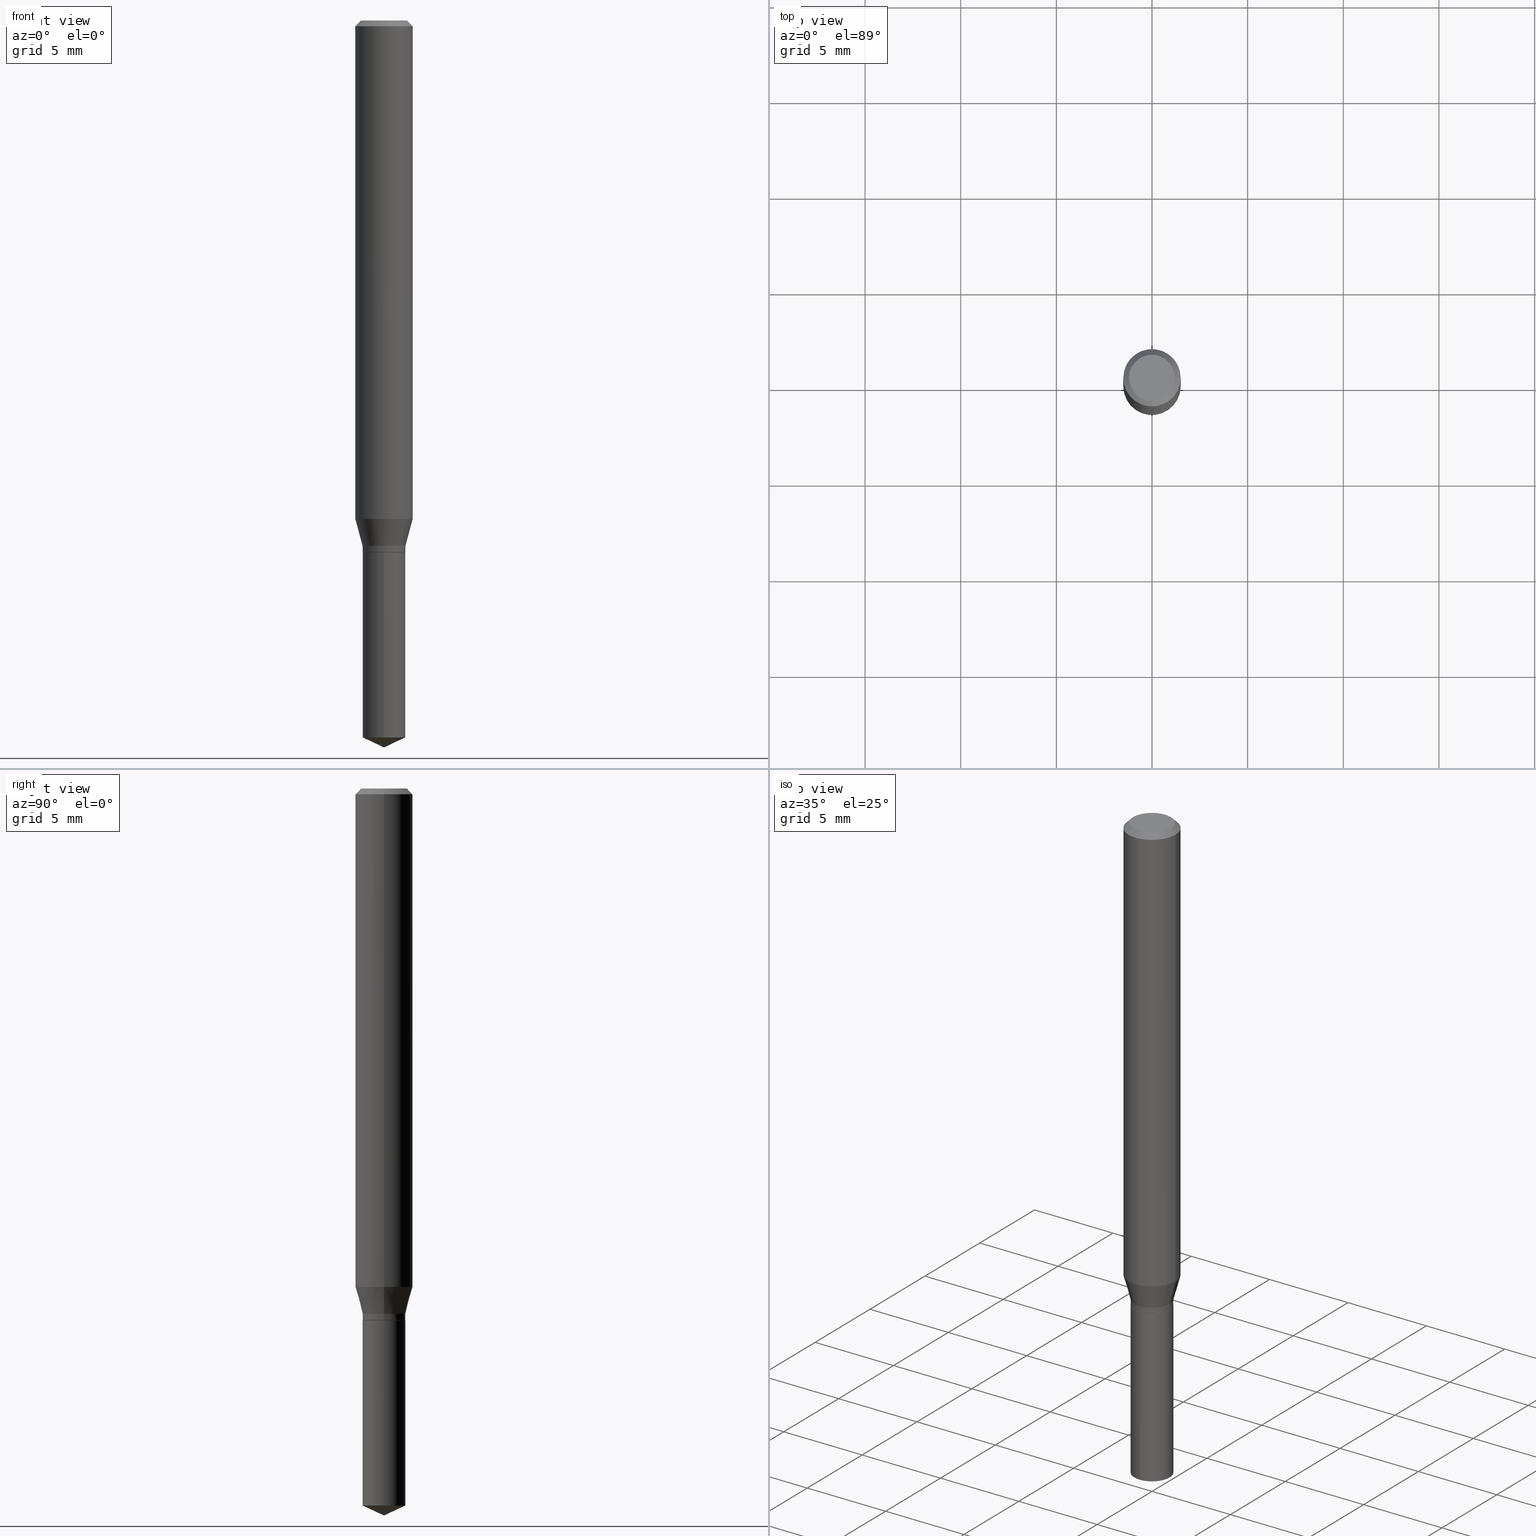
[diagram: canonical four-view strip — front | top / right | iso, engineering-drawing reading convention]
A machine part, canonical four-view strip (front | top / right | iso — engineering-drawing reading convention). The complete STEP part file that produces these views, byte-faithful:
ISO-10303-21;
HEADER;
FILE_DESCRIPTION (( 'STEP AP203' ),
    '1' );
FILE_NAME ('07629.STEP',
    '2024-04-24T00:02:10',
    ( '' ),
    ( '' ),
    'SwSTEP 2.0',
    'SolidWorks 2023',
    '' );
FILE_SCHEMA (( 'CONFIG_CONTROL_DESIGN' ));
ENDSEC;

DATA;
#1 = ORIENTED_EDGE ( 'NONE', *, *, #243, .T. ) ;
#2 = CARTESIAN_POINT ( 'NONE',  ( 0.05905000000000013016, -3.992878450842360459E-15, -1.025505840426844895 ) ) ;
#3 = VECTOR ( 'NONE', #465, 39.37007874015748143 ) ;
#4 = EDGE_LOOP ( 'NONE', ( #455, #344, #325, #201 ) ) ;
#5 = DIRECTION ( 'NONE',  ( -2.445458899330790108E-29, 3.491495526022433205E-15, 1.000000000000000000 ) ) ;
#6 = ORIENTED_EDGE ( 'NONE', *, *, #239, .T. ) ;
#7 = EDGE_CURVE ( 'NONE', #244, #100, #140, .T. ) ;
#8 = CARTESIAN_POINT ( 'NONE',  ( 8.265746106709734507E-48, -1.180129479067563789E-33, -3.380025165646692144E-19 ) ) ;
#9 = VERTEX_POINT ( 'NONE', #138 ) ;
#10 = CARTESIAN_POINT ( 'NONE',  ( 0.04410000000000000031, -4.083287425777057775E-15, -1.081299999999999928 ) ) ;
#11 = APPLICATION_CONTEXT ( 'configuration controlled 3d designs of mechanical parts and assemblies' ) ;
#12 = CARTESIAN_POINT ( 'NONE',  ( -0.05905000000000013016, -3.160959019258645651E-15, -1.025505840426844895 ) ) ;
#13 = CIRCLE ( 'NONE', #222, 0.04410000000000000031 ) ;
#14 = EDGE_CURVE ( 'NONE', #384, #30, #370, .T. ) ;
#15 = FACE_OUTER_BOUND ( 'NONE', #4, .T. ) ;
#16 = CARTESIAN_POINT ( 'NONE',  ( 2.676565608369631794E-29, -3.821426325363822773E-15, -1.094499999999999806 ) ) ;
#17 = APPROVAL_STATUS ( 'not_yet_approved' ) ;
#18 = COORDINATED_UNIVERSAL_TIME_OFFSET ( 5, 0, .BEHIND. ) ;
#19 = LOCAL_TIME ( 20, 2, 10.00000000000000000, #286 ) ;
#20 = DIRECTION ( 'NONE',  ( 0.7071067811865451302, -7.319954787623248157E-15, -0.7071067811865499042 ) ) ;
#21 = DIRECTION ( 'NONE',  ( 2.445468806185136597E-29, -3.491481338843145583E-15, -1.000000000000000000 ) ) ;
#22 = ORIENTED_EDGE ( 'NONE', *, *, #447, .T. ) ;
#23 = CC_DESIGN_PERSON_AND_ORGANIZATION_ASSIGNMENT ( #216, #101, ( #106 ) ) ;
#24 = AXIS2_PLACEMENT_3D ( 'NONE', #446, #167, #132 ) ;
#25 = AXIS2_PLACEMENT_3D ( 'NONE', #431, #155, #87 ) ;
#26 = CARTESIAN_POINT ( 'NONE',  ( -9.261924752013118283E-28, 1.322368428517963298E-13, 37.87397874015748300 ) ) ;
#27 = DIRECTION ( 'NONE',  ( 1.000000000000000000, -6.982962677686271444E-15, 0.000000000000000000 ) ) ;
#28 = ORIENTED_EDGE ( 'NONE', *, *, #447, .F. ) ;
#29 = FACE_OUTER_BOUND ( 'NONE', #377, .T. ) ;
#30 = VERTEX_POINT ( 'NONE', #125 ) ;
#31 = FACE_OUTER_BOUND ( 'NONE', #82, .T. ) ;
#32 = VECTOR ( 'NONE', #381, 39.37007874015748143 ) ;
#33 = CIRCLE ( 'NONE', #25, 0.04410000000000000031 ) ;
#34 = VERTEX_POINT ( 'NONE', #323 ) ;
#35 = CARTESIAN_POINT ( 'NONE',  ( 2.676565608369631794E-29, -3.821426325363822773E-15, -1.094499999999999806 ) ) ;
#36 = EDGE_LOOP ( 'NONE', ( #309, #373, #426 ) ) ;
#37 = DIRECTION ( 'NONE',  ( -6.982962677686267499E-15, -1.000000000000000000, 3.520397390770434543E-15 ) ) ;
#38 = EDGE_CURVE ( 'NONE', #311, #488, #434, .T. ) ;
#39 = ORIENTED_EDGE ( 'NONE', *, *, #14, .T. ) ;
#40 = CARTESIAN_POINT ( 'NONE',  ( -3.079486540859375509E-16, -0.04410000000000382364, -1.094499999999999806 ) ) ;
#41 = AXIS2_PLACEMENT_3D ( 'NONE', #174, #135, #289 ) ;
#42 = AXIS2_PLACEMENT_3D ( 'NONE', #112, #305, #262 ) ;
#43 = ORIENTED_EDGE ( 'NONE', *, *, #211, .T. ) ;
#44 = DIRECTION ( 'NONE',  ( -2.445458899330790108E-29, 3.491495526022433205E-15, 1.000000000000000000 ) ) ;
#45 = ORIENTED_EDGE ( 'NONE', *, *, #211, .F. ) ;
#46 = CARTESIAN_POINT ( 'NONE',  ( 2.676565608369631794E-29, -3.821426325363822773E-15, -1.094499999999999806 ) ) ;
#47 = CARTESIAN_POINT ( 'NONE',  ( 2.676565608369631794E-29, -3.821426325363822773E-15, -1.094499999999999806 ) ) ;
#48 = CARTESIAN_POINT ( 'NONE',  ( 2.644285420127988674E-29, -3.775338771691093501E-15, -1.081299999999999928 ) ) ;
#49 = CLOSED_SHELL ( 'NONE', ( #68, #185, #363, #332, #149 ) ) ;
#50 = CARTESIAN_POINT ( 'NONE',  ( 0.05905000000000006771, -4.123439461173745257E-16, 2.879382386107503723E-30 ) ) ;
#51 = CIRCLE ( 'NONE', #146, 0.05905000000000013016 ) ;
#52 = DIRECTION ( 'NONE',  ( -2.445468806185136597E-29, 3.491481338843145583E-15, 1.000000000000000000 ) ) ;
#53 = DATE_TIME_ROLE ( 'creation_date' ) ;
#54 = AXIS2_PLACEMENT_3D ( 'NONE', #246, #425, #79 ) ;
#55 = LINE ( 'NONE', #401, #371 ) ;
#56 = VERTEX_POINT ( 'NONE', #475 ) ;
#57 = PERSON_AND_ORGANIZATION_ROLE ( 'classification_officer' ) ;
#58 = CARTESIAN_POINT ( 'NONE',  ( 2.644285420127988674E-29, -3.775338771691093501E-15, -1.081299999999999928 ) ) ;
#59 = EDGE_LOOP ( 'NONE', ( #189, #113, #481 ) ) ;
#60 = DIRECTION ( 'NONE',  ( -2.445468806185136597E-29, 3.491481338843145583E-15, 1.000000000000000000 ) ) ;
#61 = EDGE_CURVE ( 'NONE', #231, #406, #393, .T. ) ;
#62 = DATE_AND_TIME ( #327, #166 ) ;
#63 = VECTOR ( 'NONE', #490, 39.37007874015748143 ) ;
#64 = DIRECTION ( 'NONE',  ( -2.445468806185136597E-29, 3.491481338843145583E-15, 1.000000000000000000 ) ) ;
#65 = ORIENTED_EDGE ( 'NONE', *, *, #233, .F. ) ;
#66 = LINE ( 'NONE', #67, #330 ) ;
#67 = CARTESIAN_POINT ( 'NONE',  ( -0.04410000000000000031, -3.461989425220889120E-15, -1.081299999999999928 ) ) ;
#68 = ADVANCED_FACE ( 'NONE', ( #203 ), #352, .T. ) ;
#69 = EDGE_LOOP ( 'NONE', ( #424, #480, #115, #479 ) ) ;
#70 = COORDINATED_UNIVERSAL_TIME_OFFSET ( 5, 0, .BEHIND. ) ;
#71 = AXIS2_PLACEMENT_3D ( 'NONE', #374, #64, #453 ) ;
#72 = CARTESIAN_POINT ( 'NONE',  ( 2.675342873966538993E-29, -3.819680584694400481E-15, -1.093999999999999861 ) ) ;
#73 = CIRCLE ( 'NONE', #410, 0.04724000000000000421 ) ;
#74 = ORIENTED_EDGE ( 'NONE', *, *, #123, .F. ) ;
#75 = LINE ( 'NONE', #232, #32 ) ;
#76 = VERTEX_POINT ( 'NONE', #12 ) ;
#77 = FACE_OUTER_BOUND ( 'NONE', #69, .T. ) ;
#78 = ORIENTED_EDGE ( 'NONE', *, *, #302, .T. ) ;
#79 = DIRECTION ( 'NONE',  ( -1.000000000000000000, 6.982962677686266711E-15, 0.000000000000000000 ) ) ;
#80 = AXIS2_PLACEMENT_3D ( 'NONE', #470, #356, #86 ) ;
#81 = AXIS2_PLACEMENT_3D ( 'NONE', #108, #153, #27 ) ;
#82 = EDGE_LOOP ( 'NONE', ( #154, #326, #139, #199 ) ) ;
#83 = APPROVAL ( #474, 'UNSPECIFIED' ) ;
#84 = DIMENSIONAL_EXPONENTS ( 1.000000000000000000, 0.000000000000000000, 0.000000000000000000, 0.000000000000000000, 0.000000000000000000, 0.000000000000000000, 0.000000000000000000 ) ;
#85 = DIRECTION ( 'NONE',  ( -6.982962677686265922E-15, -1.000000000000000000, 3.097333326149958410E-15 ) ) ;
#86 = DIRECTION ( 'NONE',  ( -6.982962677686265922E-15, -1.000000000000000000, 6.194666652299916821E-15 ) ) ;
#87 = DIRECTION ( 'NONE',  ( 1.000000000000000000, -6.982962677686271444E-15, 0.000000000000000000 ) ) ;
#88 = DIRECTION ( 'NONE',  ( -2.445458899330790108E-29, 3.491495526022433205E-15, 1.000000000000000000 ) ) ;
#89 = LINE ( 'NONE', #279, #136 ) ;
#90 = PERSON_AND_ORGANIZATION ( #388, #385 ) ;
#91 = ADVANCED_BREP_SHAPE_REPRESENTATION ( '07629', ( #350, #430, #170 ), #104 ) ;
#92 =( LENGTH_UNIT ( ) NAMED_UNIT ( * ) SI_UNIT ( $, .METRE. ) );
#93 = CARTESIAN_POINT ( 'NONE',  ( -0.04359999999999999987, -3.511629692572418896E-15, -1.094499999999999806 ) ) ;
#94 = EDGE_CURVE ( 'NONE', #406, #34, #183, .T. ) ;
#95 = AXIS2_PLACEMENT_3D ( 'NONE', #258, #21, #177 ) ;
#96 = APPROVAL ( #304, 'UNSPECIFIED' ) ;
#97 = CIRCLE ( 'NONE', #121, 0.04724000000000000421 ) ;
#98 = DATE_AND_TIME ( #171, #19 ) ;
#99 = CARTESIAN_POINT ( 'NONE',  ( 2.888098660104665518E-31, -4.123439461173782112E-17, -0.01181000000000007738 ) ) ;
#100 = VERTEX_POINT ( 'NONE', #440 ) ;
#101 = PERSON_AND_ORGANIZATION_ROLE ( 'design_owner' ) ;
#102 = ORIENTED_EDGE ( 'NONE', *, *, #296, .F. ) ;
#103 = PLANE ( 'NONE',  #477 ) ;
#104 =( GEOMETRIC_REPRESENTATION_CONTEXT ( 3 ) GLOBAL_UNCERTAINTY_ASSIGNED_CONTEXT ( ( #143 ) ) GLOBAL_UNIT_ASSIGNED_CONTEXT ( ( #362, #131, #293 ) ) REPRESENTATION_CONTEXT ( 'NONE', 'WORKASPACE' ) );
#105 = CARTESIAN_POINT ( 'NONE',  ( 4.132873053354867254E-48, -5.900647395337818946E-34, -1.690012582823346072E-19 ) ) ;
#106 = PRODUCT ( '07629', '07629', '', ( #445 ) ) ;
#107 = PERSON_AND_ORGANIZATION ( #388, #385 ) ;
#108 = CARTESIAN_POINT ( 'NONE',  ( 2.644285420127988674E-29, -3.775338771691093501E-15, -1.081299999999999928 ) ) ;
#109 = EDGE_LOOP ( 'NONE', ( #191, #419, #234, #342 ) ) ;
#110 = DIRECTION ( 'NONE',  ( -2.445468806185136597E-29, 3.491481338843145583E-15, 1.000000000000000000 ) ) ;
#111 = ORIENTED_EDGE ( 'NONE', *, *, #38, .T. ) ;
#112 = CARTESIAN_POINT ( 'NONE',  ( 0.000000000000000000, 0.000000000000000000, 0.000000000000000000 ) ) ;
#113 = ORIENTED_EDGE ( 'NONE', *, *, #439, .T. ) ;
#114 = CARTESIAN_POINT ( 'NONE',  ( 0.04359999999999999987, -4.125883498110944040E-15, -1.094499999999999806 ) ) ;
#115 = ORIENTED_EDGE ( 'NONE', *, *, #94, .T. ) ;
#116 = CARTESIAN_POINT ( 'NONE',  ( 2.507842543324521541E-29, -3.580534504724985539E-15, -1.025505840426844895 ) ) ;
#117 = CC_DESIGN_PERSON_AND_ORGANIZATION_ASSIGNMENT ( #251, #57, ( #223 ) ) ;
#118 = ORIENTED_EDGE ( 'NONE', *, *, #415, .T. ) ;
#119 = LINE ( 'NONE', #392, #197 ) ;
#120 = AXIS2_PLACEMENT_3D ( 'NONE', #58, #367, #220 ) ;
#121 = AXIS2_PLACEMENT_3D ( 'NONE', #8, #396, #163 ) ;
#122 = ORIENTED_EDGE ( 'NONE', *, *, #239, .F. ) ;
#123 = EDGE_CURVE ( 'NONE', #384, #244, #278, .T. ) ;
#124 = FACE_OUTER_BOUND ( 'NONE', #275, .T. ) ;
#125 = CARTESIAN_POINT ( 'NONE',  ( 0.04359999999999999987, -4.125883498110944040E-15, -1.094499999999999806 ) ) ;
#126 = DIRECTION ( 'NONE',  ( -2.445468806185136597E-29, 3.491481338843145583E-15, 1.000000000000000000 ) ) ;
#127 = APPROVAL ( #17, 'UNSPECIFIED' ) ;
#128 = DIRECTION ( 'NONE',  ( 0.000000000000000000, 0.000000000000000000, 1.000000000000000000 ) ) ;
#129 = CONICAL_SURFACE ( 'NONE', #179, 0.04359999999999999987, 0.7853981633974141952 ) ;
#130 = COORDINATED_UNIVERSAL_TIME_OFFSET ( 5, 0, .BEHIND. ) ;
#131 =( NAMED_UNIT ( * ) PLANE_ANGLE_UNIT ( ) SI_UNIT ( $, .RADIAN. ) );
#132 = DIRECTION ( 'NONE',  ( 1.000000000000000000, -6.982962677686266711E-15, 0.000000000000000000 ) ) ;
#133 = CC_DESIGN_PERSON_AND_ORGANIZATION_ASSIGNMENT ( #250, #398, ( #416 ) ) ;
#134 = APPLICATION_PROTOCOL_DEFINITION ( 'international standard', 'config_control_design', 1994, #198 ) ;
#135 = DIRECTION ( 'NONE',  ( -2.445458899330790108E-29, 3.491495526022433205E-15, 1.000000000000000000 ) ) ;
#136 = VECTOR ( 'NONE', #355, 39.37007874015748143 ) ;
#137 = PERSON_AND_ORGANIZATION ( #388, #385 ) ;
#138 = CARTESIAN_POINT ( 'NONE',  ( 0.04724000000000000421, -3.852183633974369838E-16, -3.380025165621689721E-19 ) ) ;
#139 = ORIENTED_EDGE ( 'NONE', *, *, #94, .F. ) ;
#140 = LINE ( 'NONE', #333, #178 ) ;
#141 = EDGE_CURVE ( 'NONE', #488, #311, #145, .T. ) ;
#142 = DATE_TIME_ROLE ( 'classification_date' ) ;
#143 = UNCERTAINTY_MEASURE_WITH_UNIT (LENGTH_MEASURE( 1.000000000000000082E-05 ), #362, 'distance_accuracy_value', 'NONE');
#144 = DIRECTION ( 'NONE',  ( -2.445468806185136597E-29, 3.491481338843145583E-15, 1.000000000000000000 ) ) ;
#145 = CIRCLE ( 'NONE', #376, 0.04410000000000000031 ) ;
#146 = AXIS2_PLACEMENT_3D ( 'NONE', #116, #242, #383 ) ;
#147 = DIRECTION ( 'NONE',  ( 1.000000000000000000, -6.982962677686265922E-15, 4.876176775795935793E-29 ) ) ;
#148 = ORIENTED_EDGE ( 'NONE', *, *, #288, .T. ) ;
#149 = ADVANCED_FACE ( 'NONE', ( #247 ), #214, .F. ) ;
#150 = CYLINDRICAL_SURFACE ( 'NONE', #395, 0.04410000000000000031 ) ;
#151 = ADVANCED_FACE ( 'NONE', ( #365 ), #452, .T. ) ;
#152 = ORIENTED_EDGE ( 'NONE', *, *, #315, .F. ) ;
#153 = DIRECTION ( 'NONE',  ( -2.445468806185136597E-29, 3.491481338843145583E-15, 1.000000000000000000 ) ) ;
#154 = ORIENTED_EDGE ( 'NONE', *, *, #321, .T. ) ;
#155 = DIRECTION ( 'NONE',  ( -2.445468806185136597E-29, 3.491481338843145583E-15, 1.000000000000000000 ) ) ;
#156 = PRODUCT_DEFINITION_FORMATION_WITH_SPECIFIED_SOURCE ( 'ANY', '', #106, .NOT_KNOWN. ) ;
#157 = ORIENTED_EDGE ( 'NONE', *, *, #204, .T. ) ;
#158 = DIRECTION ( 'NONE',  ( -6.982962677686267499E-15, -1.000000000000000000, 3.520397390770434543E-15 ) ) ;
#159 = VERTEX_POINT ( 'NONE', #444 ) ;
#160 = DIRECTION ( 'NONE',  ( 1.000000000000000000, -6.982962677686271444E-15, 0.000000000000000000 ) ) ;
#161 = ORIENTED_EDGE ( 'NONE', *, *, #357, .T. ) ;
#162 = EDGE_CURVE ( 'NONE', #34, #406, #329, .T. ) ;
#163 = DIRECTION ( 'NONE',  ( 1.000000000000000000, -6.982962677686266711E-15, 4.876185090822587894E-29 ) ) ;
#164 = CLOSED_SHELL ( 'NONE', ( #284, #413, #292, #324, #241, #287, #176, #469, #151, #267, #219, #276 ) ) ;
#165 = AXIS2_PLACEMENT_3D ( 'NONE', #192, #144, #484 ) ;
#166 = LOCAL_TIME ( 20, 2, 10.00000000000000000, #366 ) ;
#167 = DIRECTION ( 'NONE',  ( -2.445468806185136597E-29, 3.491481338843145583E-15, 1.000000000000000000 ) ) ;
#168 = CYLINDRICAL_SURFACE ( 'NONE', #472, 0.05905000000000006771 ) ;
#169 = DIRECTION ( 'NONE',  ( 1.000000000000000000, -6.982962677686266711E-15, 4.876176775795936353E-29 ) ) ;
#170 = AXIS2_PLACEMENT_3D ( 'NONE', #213, #128, #212 ) ;
#171 = CALENDAR_DATE ( 2024, 23, 4 ) ;
#172 = DIRECTION ( 'NONE',  ( 2.445458899330789267E-29, -3.491495526022433599E-15, -1.000000000000000000 ) ) ;
#173 = PERSON_AND_ORGANIZATION ( #388, #385 ) ;
#174 = CARTESIAN_POINT ( 'NONE',  ( 2.676565608369631794E-29, -3.821426325363822773E-15, -1.094499999999999806 ) ) ;
#175 = DATE_AND_TIME ( #359, #274 ) ;
#176 = ADVANCED_FACE ( 'NONE', ( #407 ), #195, .T. ) ;
#177 = DIRECTION ( 'NONE',  ( -1.000000000000000000, 6.982962677686266711E-15, 0.000000000000000000 ) ) ;
#178 = VECTOR ( 'NONE', #429, 39.37007874015748143 ) ;
#179 = AXIS2_PLACEMENT_3D ( 'NONE', #334, #454, #482 ) ;
#180 = DIRECTION ( 'NONE',  ( 1.000000000000000000, -6.982962677686270655E-15, 0.000000000000000000 ) ) ;
#181 = CARTESIAN_POINT ( 'NONE',  ( 2.676565608369631794E-29, -3.821426325363822773E-15, -1.094499999999999806 ) ) ;
#182 = CYLINDRICAL_SURFACE ( 'NONE', #42, 0.04410000000000000031 ) ;
#183 = CIRCLE ( 'NONE', #24, 0.05904999999999999832 ) ;
#184 = VECTOR ( 'NONE', #328, 39.37007874015748143 ) ;
#185 = ADVANCED_FACE ( 'NONE', ( #369 ), #281, .T. ) ;
#186 = DIRECTION ( 'NONE',  ( 1.000000000000000000, -6.982962677686265133E-15, 0.000000000000000000 ) ) ;
#187 = LOCAL_TIME ( 20, 2, 10.00000000000000000, #70 ) ;
#188 = PRODUCT_DEFINITION_SHAPE ( 'NONE', 'NONE',  #416 ) ;
#189 = ORIENTED_EDGE ( 'NONE', *, *, #194, .F. ) ;
#190 = DIRECTION ( 'NONE',  ( -1.000000000000000000, 6.982962677686265922E-15, -4.876176775795935793E-29 ) ) ;
#191 = ORIENTED_EDGE ( 'NONE', *, *, #408, .T. ) ;
#192 = CARTESIAN_POINT ( 'NONE',  ( 2.676565608369631794E-29, -3.821426325363822773E-15, -1.094499999999999806 ) ) ;
#193 = EDGE_LOOP ( 'NONE', ( #157, #485, #459, #240 ) ) ;
#194 = EDGE_CURVE ( 'NONE', #300, #311, #338, .T. ) ;
#195 = CONICAL_SURFACE ( 'NONE', #120, 0.04410000000000000031, 0.2617993877991496854 ) ;
#196 = CARTESIAN_POINT ( 'NONE',  ( 3.133493464702402746E-16, 0.04409999999999617698, -1.094500000000000028 ) ) ;
#197 = VECTOR ( 'NONE', #205, 39.37007874015748854 ) ;
#198 = APPLICATION_CONTEXT ( 'configuration controlled 3d designs of mechanical parts and assemblies' ) ;
#199 = ORIENTED_EDGE ( 'NONE', *, *, #61, .F. ) ;
#200 = CARTESIAN_POINT ( 'NONE',  ( -0.04359999999999999987, -3.508980465398308089E-15, -1.094499999999999806 ) ) ;
#201 = ORIENTED_EDGE ( 'NONE', *, *, #162, .F. ) ;
#202 = CARTESIAN_POINT ( 'NONE',  ( 3.133493464702402253E-16, 0.04409999999999485859, -1.475535832275364889 ) ) ;
#203 = FACE_OUTER_BOUND ( 'NONE', #450, .T. ) ;
#204 = EDGE_CURVE ( 'NONE', #30, #384, #290, .T. ) ;
#205 = DIRECTION ( 'NONE',  ( -6.328713451373380423E-15, -0.9063077870366499367, 0.4226182617406991082 ) ) ;
#206 = AXIS2_PLACEMENT_3D ( 'NONE', #181, #379, #375 ) ;
#207 = CC_DESIGN_DATE_AND_TIME_ASSIGNMENT ( #62, #142, ( #223 ) ) ;
#208 = CONICAL_SURFACE ( 'NONE', #291, 84.42940631927480410, 1.134464013796318005 ) ;
#209 = CARTESIAN_POINT ( 'NONE',  ( 3.608373075371336017E-29, -5.151811229007493237E-15, -1.475535832275364667 ) ) ;
#210 = DIRECTION ( 'NONE',  ( -6.982962677686265922E-15, -1.000000000000000000, 3.097333326149958410E-15 ) ) ;
#211 = EDGE_CURVE ( 'NONE', #331, #339, #353, .T. ) ;
#212 = DIRECTION ( 'NONE',  ( 1.000000000000000000, 0.000000000000000000, 0.000000000000000000 ) ) ;
#213 = CARTESIAN_POINT ( 'NONE',  ( 0.000000000000000000, 0.000000000000000000, 0.000000000000000000 ) ) ;
#214 = PLANE ( 'NONE',  #418 ) ;
#215 = ORIENTED_EDGE ( 'NONE', *, *, #288, .F. ) ;
#216 = PERSON_AND_ORGANIZATION ( #388, #385 ) ;
#217 = DIRECTION ( 'NONE',  ( 1.000000000000000000, -6.982962677686266711E-15, 0.000000000000000000 ) ) ;
#218 = APPLICATION_PROTOCOL_DEFINITION ( 'international standard', 'config_control_design', 1994, #11 ) ;
#219 = ADVANCED_FACE ( 'NONE', ( #343 ), #103, .F. ) ;
#220 = DIRECTION ( 'NONE',  ( 1.000000000000000000, -6.982962677686271444E-15, 0.000000000000000000 ) ) ;
#221 = EDGE_CURVE ( 'NONE', #76, #231, #394, .T. ) ;
#222 = AXIS2_PLACEMENT_3D ( 'NONE', #48, #237, #422 ) ;
#223 = SECURITY_CLASSIFICATION ( '', '', #405 ) ;
#224 = APPROVAL_DATE_TIME ( #337, #96 ) ;
#225 = FACE_OUTER_BOUND ( 'NONE', #368, .T. ) ;
#226 = DIRECTION ( 'NONE',  ( 2.438088387897960049E-29, -3.491481338843145188E-15, -1.000000000000000000 ) ) ;
#227 = DIRECTION ( 'NONE',  ( 1.000000000000000000, -6.982962677686271444E-15, 0.000000000000000000 ) ) ;
#228 = ORIENTED_EDGE ( 'NONE', *, *, #360, .T. ) ;
#229 = AXIS2_PLACEMENT_3D ( 'NONE', #26, #263, #37 ) ;
#230 = CYLINDRICAL_SURFACE ( 'NONE', #336, 0.05905000000000006771 ) ;
#231 = VERTEX_POINT ( 'NONE', #2 ) ;
#232 = CARTESIAN_POINT ( 'NONE',  ( 0.04410000000000000031, -4.083287425777057775E-15, -1.081299999999999928 ) ) ;
#233 = EDGE_CURVE ( 'NONE', #100, #76, #66, .T. ) ;
#234 = ORIENTED_EDGE ( 'NONE', *, *, #302, .F. ) ;
#235 = LINE ( 'NONE', #463, #3 ) ;
#236 = ORIENTED_EDGE ( 'NONE', *, *, #296, .T. ) ;
#237 = DIRECTION ( 'NONE',  ( -2.445468806185136597E-29, 3.491481338843145583E-15, 1.000000000000000000 ) ) ;
#238 = APPROVAL_PERSON_ORGANIZATION ( #173, #127, #280 ) ;
#239 = EDGE_CURVE ( 'NONE', #488, #331, #335, .T. ) ;
#240 = ORIENTED_EDGE ( 'NONE', *, *, #357, .F. ) ;
#241 = ADVANCED_FACE ( 'NONE', ( #451 ), #150, .T. ) ;
#242 = DIRECTION ( 'NONE',  ( -2.445468806185136597E-29, 3.491481338843145583E-15, 1.000000000000000000 ) ) ;
#243 = EDGE_CURVE ( 'NONE', #100, #347, #435, .T. ) ;
#244 = VERTEX_POINT ( 'NONE', #260 ) ;
#245 = CC_DESIGN_DATE_AND_TIME_ASSIGNMENT ( #175, #53, ( #416 ) ) ;
#246 = CARTESIAN_POINT ( 'NONE',  ( 2.888098660104665518E-31, -4.123439461173782112E-17, -0.01181000000000007738 ) ) ;
#247 = FACE_OUTER_BOUND ( 'NONE', #272, .T. ) ;
#248 = DIRECTION ( 'NONE',  ( 1.000000000000000000, -6.982962677686266711E-15, 4.876185090822587894E-29 ) ) ;
#249 = CONICAL_SURFACE ( 'NONE', #165, 0.04359999999999999987, 0.7853981633974141952 ) ;
#250 = PERSON_AND_ORGANIZATION ( #388, #385 ) ;
#251 = PERSON_AND_ORGANIZATION ( #388, #385 ) ;
#252 = DIRECTION ( 'NONE',  ( -6.982962677686265922E-15, -1.000000000000000000, 6.194666652299916821E-15 ) ) ;
#253 = AXIS2_PLACEMENT_3D ( 'NONE', #47, #285, #180 ) ;
#254 = CONICAL_SURFACE ( 'NONE', #54, 0.05904999999999999832, 0.7853981633974449483 ) ;
#255 = CC_DESIGN_APPROVAL ( #83, ( #156 ) ) ;
#256 = PERSON_AND_ORGANIZATION_ROLE ( 'design_supplier' ) ;
#257 = ORIENTED_EDGE ( 'NONE', *, *, #321, .F. ) ;
#258 = CARTESIAN_POINT ( 'NONE',  ( 2.888098660104665518E-31, -4.123439461173782112E-17, -0.01181000000000007738 ) ) ;
#259 = DIRECTION ( 'NONE',  ( 1.000000000000000000, -6.982962677686266711E-15, 4.876176775795935232E-29 ) ) ;
#260 = CARTESIAN_POINT ( 'NONE',  ( -0.04410000000000000031, -3.484160331722543004E-15, -1.093999999999999861 ) ) ;
#261 = SHAPE_DEFINITION_REPRESENTATION ( #188, #91 ) ;
#262 = DIRECTION ( 'NONE',  ( 1.000000000000000000, -6.982962677686266711E-15, 4.876176775795935232E-29 ) ) ;
#263 = DIRECTION ( 'NONE',  ( -2.445458899330790108E-29, 3.491495526022433205E-15, 1.000000000000000000 ) ) ;
#264 = EDGE_LOOP ( 'NONE', ( #65, #1, #236, #382 ) ) ;
#265 = AXIS2_PLACEMENT_3D ( 'NONE', #72, #110, #227 ) ;
#266 = DIRECTION ( 'NONE',  ( -2.445468806185136597E-29, 3.491481338843145583E-15, 1.000000000000000000 ) ) ;
#267 = ADVANCED_FACE ( 'NONE', ( #225 ), #372, .F. ) ;
#268 = ORIENTED_EDGE ( 'NONE', *, *, #243, .F. ) ;
#269 = CARTESIAN_POINT ( 'NONE',  ( 3.133493464702308575E-16, 0.04409999999999617698, -1.094500000000000028 ) ) ;
#270 = ORIENTED_EDGE ( 'NONE', *, *, #204, .F. ) ;
#271 = DIRECTION ( 'NONE',  ( -2.445468806185136597E-29, 3.491481338843145583E-15, 1.000000000000000000 ) ) ;
#272 = EDGE_LOOP ( 'NONE', ( #43, #22 ) ) ;
#273 = CARTESIAN_POINT ( 'NONE',  ( 2.676565608369631794E-29, -3.821426325363822773E-15, -1.094499999999999806 ) ) ;
#274 = LOCAL_TIME ( 20, 2, 10.00000000000000000, #18 ) ;
#275 = EDGE_LOOP ( 'NONE', ( #306, #111, #6, #28 ) ) ;
#276 = ADVANCED_FACE ( 'NONE', ( #412 ), #129, .T. ) ;
#277 = FACE_OUTER_BOUND ( 'NONE', #59, .T. ) ;
#278 = LINE ( 'NONE', #93, #402 ) ;
#279 = CARTESIAN_POINT ( 'NONE',  ( -0.05905000000000006771, 4.195754854663396409E-16, -2.904631170795525045E-30 ) ) ;
#280 = APPROVAL_ROLE ( '' ) ;
#281 = CONICAL_SURFACE ( 'NONE', #229, 84.42940631927480410, 1.134464013796318005 ) ;
#282 = CIRCLE ( 'NONE', #354, 0.04410000000000000031 ) ;
#283 = CALENDAR_DATE ( 2024, 23, 4 ) ;
#284 = ADVANCED_FACE ( 'NONE', ( #417 ), #249, .T. ) ;
#285 = DIRECTION ( 'NONE',  ( -2.445468806185136597E-29, 3.491481338843145583E-15, 1.000000000000000000 ) ) ;
#286 = COORDINATED_UNIVERSAL_TIME_OFFSET ( 5, 0, .BEHIND. ) ;
#287 = ADVANCED_FACE ( 'NONE', ( #29 ), #182, .T. ) ;
#288 = EDGE_CURVE ( 'NONE', #244, #159, #404, .T. ) ;
#289 = DIRECTION ( 'NONE',  ( -6.982962677686265922E-15, -1.000000000000000000, 3.097333326149958410E-15 ) ) ;
#290 = CIRCLE ( 'NONE', #71, 0.04359999999999999987 ) ;
#291 = AXIS2_PLACEMENT_3D ( 'NONE', #433, #5, #158 ) ;
#292 = ADVANCED_FACE ( 'NONE', ( #31 ), #230, .T. ) ;
#293 =( NAMED_UNIT ( * ) SI_UNIT ( $, .STERADIAN. ) SOLID_ANGLE_UNIT ( ) );
#294 = ORIENTED_EDGE ( 'NONE', *, *, #162, .T. ) ;
#295 = DIRECTION ( 'NONE',  ( -0.2588190451025210170, 5.211531920934547886E-15, 0.9659258262890682012 ) ) ;
#296 = EDGE_CURVE ( 'NONE', #347, #231, #75, .T. ) ;
#297 = DIRECTION ( 'NONE',  ( -2.438088387897960049E-29, 3.491481338843145188E-15, 1.000000000000000000 ) ) ;
#298 = VECTOR ( 'NONE', #346, 39.37007874015748143 ) ;
#299 = DIRECTION ( 'NONE',  ( 6.439704144417036664E-15, 0.9063077870366530453, 0.4226182617406928910 ) ) ;
#300 = VERTEX_POINT ( 'NONE', #387 ) ;
#301 = DIRECTION ( 'NONE',  ( -2.445468806185136597E-29, 3.491481338843145583E-15, 1.000000000000000000 ) ) ;
#302 = EDGE_CURVE ( 'NONE', #347, #100, #13, .T. ) ;
#303 = ORIENTED_EDGE ( 'NONE', *, *, #312, .T. ) ;
#304 = APPROVAL_STATUS ( 'not_yet_approved' ) ;
#305 = DIRECTION ( 'NONE',  ( -2.445468806185136597E-29, 3.491481338843145583E-15, 1.000000000000000000 ) ) ;
#306 = ORIENTED_EDGE ( 'NONE', *, *, #360, .F. ) ;
#307 = VECTOR ( 'NONE', #358, 39.37007874015748854 ) ;
#308 = CARTESIAN_POINT ( 'NONE',  ( 0.04410000000000000031, -3.079486540859643722E-16, 2.150393958126007351E-30 ) ) ;
#309 = ORIENTED_EDGE ( 'NONE', *, *, #439, .F. ) ;
#310 = CARTESIAN_POINT ( 'NONE',  ( 0.05904999999999999832, -4.535783407291118600E-16, -0.01181000000000007738 ) ) ;
#311 = VERTEX_POINT ( 'NONE', #202 ) ;
#312 = EDGE_CURVE ( 'NONE', #159, #347, #471, .T. ) ;
#313 = CARTESIAN_POINT ( 'NONE',  ( 2.644285420127988674E-29, -3.775338771691093501E-15, -1.081299999999999928 ) ) ;
#314 = ORIENTED_EDGE ( 'NONE', *, *, #14, .F. ) ;
#315 = EDGE_CURVE ( 'NONE', #56, #9, #97, .T. ) ;
#316 = FACE_OUTER_BOUND ( 'NONE', #380, .T. ) ;
#317 = ORIENTED_EDGE ( 'NONE', *, *, #483, .F. ) ;
#318 = CARTESIAN_POINT ( 'NONE',  ( 0.000000000000000000, 0.000000000000000000, 0.000000000000000000 ) ) ;
#319 = LENGTH_MEASURE_WITH_UNIT ( LENGTH_MEASURE( 0.02539999999999999897 ), #92 );
#320 = PERSON_AND_ORGANIZATION ( #388, #385 ) ;
#321 = EDGE_CURVE ( 'NONE', #231, #76, #51, .T. ) ;
#322 = DATE_AND_TIME ( #283, #378 ) ;
#323 = CARTESIAN_POINT ( 'NONE',  ( -0.05904999999999999832, -1.391308964202021352E-15, -0.01181000000000007738 ) ) ;
#324 = ADVANCED_FACE ( 'NONE', ( #316 ), #345, .T. ) ;
#325 = ORIENTED_EDGE ( 'NONE', *, *, #61, .T. ) ;
#326 = ORIENTED_EDGE ( 'NONE', *, *, #448, .T. ) ;
#327 = CALENDAR_DATE ( 2024, 23, 4 ) ;
#328 = DIRECTION ( 'NONE',  ( -2.445468806185136877E-29, 3.491481338843145188E-15, 1.000000000000000000 ) ) ;
#329 = CIRCLE ( 'NONE', #442, 0.05904999999999999832 ) ;
#330 = VECTOR ( 'NONE', #295, 39.37007874015748143 ) ;
#331 = VERTEX_POINT ( 'NONE', #40 ) ;
#332 = ADVANCED_FACE ( 'NONE', ( #124 ), #390, .T. ) ;
#333 = CARTESIAN_POINT ( 'NONE',  ( -0.04410000000000000031, 3.133493464702041842E-16, -2.169250374802413247E-30 ) ) ;
#334 = CARTESIAN_POINT ( 'NONE',  ( 2.676565608369631794E-29, -3.821426325363822773E-15, -1.094499999999999806 ) ) ;
#335 = LINE ( 'NONE', #487, #63 ) ;
#336 = AXIS2_PLACEMENT_3D ( 'NONE', #456, #266, #420 ) ;
#337 = DATE_AND_TIME ( #489, #187 ) ;
#338 = LINE ( 'NONE', #409, #467 ) ;
#339 = VERTEX_POINT ( 'NONE', #196 ) ;
#340 = EDGE_CURVE ( 'NONE', #9, #56, #73, .T. ) ;
#341 = DIRECTION ( 'NONE',  ( -2.445468806185136597E-29, 3.491481338843145583E-15, 1.000000000000000000 ) ) ;
#342 = ORIENTED_EDGE ( 'NONE', *, *, #312, .F. ) ;
#343 = FACE_OUTER_BOUND ( 'NONE', #476, .T. ) ;
#344 = ORIENTED_EDGE ( 'NONE', *, *, #221, .T. ) ;
#345 = CONICAL_SURFACE ( 'NONE', #443, 0.04410000000000000031, 0.2617993877991496854 ) ;
#346 = DIRECTION ( 'NONE',  ( -2.445458899330790108E-29, 3.491495526022433599E-15, 1.000000000000000000 ) ) ;
#347 = VERTEX_POINT ( 'NONE', #10 ) ;
#348 = DIRECTION ( 'NONE',  ( -2.445468806185136877E-29, 3.491481338843145188E-15, 1.000000000000000000 ) ) ;
#349 = ORIENTED_EDGE ( 'NONE', *, *, #141, .T. ) ;
#350 = MANIFOLD_SOLID_BREP ( 'Body-Move/Copy2[1]', #49 ) ;
#351 = CARTESIAN_POINT ( 'NONE',  ( 8.265746106709734507E-48, -1.180129479067563789E-33, -3.380025165646692144E-19 ) ) ;
#352 = CYLINDRICAL_SURFACE ( 'NONE', #41, 0.04410000000000000031 ) ;
#353 = CIRCLE ( 'NONE', #206, 0.04410000000000000031 ) ;
#354 = AXIS2_PLACEMENT_3D ( 'NONE', #273, #428, #85 ) ;
#355 = DIRECTION ( 'NONE',  ( -2.445468806185136877E-29, 3.491481338843145188E-15, 1.000000000000000000 ) ) ;
#356 = DIRECTION ( 'NONE',  ( -2.445458899330790108E-29, 3.491495526022433205E-15, 1.000000000000000000 ) ) ;
#357 = EDGE_CURVE ( 'NONE', #30, #159, #461, .T. ) ;
#358 = DIRECTION ( 'NONE',  ( 0.7071067811865232589, -2.468850131082003836E-15, 0.7071067811865715536 ) ) ;
#359 = CALENDAR_DATE ( 2024, 23, 4 ) ;
#360 = EDGE_CURVE ( 'NONE', #311, #339, #468, .T. ) ;
#361 = CC_DESIGN_APPROVAL ( #127, ( #416 ) ) ;
#362 =( CONVERSION_BASED_UNIT ( 'INCH', #319 ) LENGTH_UNIT ( ) NAMED_UNIT ( #84 ) );
#363 = ADVANCED_FACE ( 'NONE', ( #277 ), #208, .T. ) ;
#364 = DESIGN_CONTEXT ( 'detailed design', #11, 'design' ) ;
#365 = FACE_OUTER_BOUND ( 'NONE', #391, .T. ) ;
#366 = COORDINATED_UNIVERSAL_TIME_OFFSET ( 5, 0, .BEHIND. ) ;
#367 = DIRECTION ( 'NONE',  ( -2.445468806185136597E-29, 3.491481338843145583E-15, 1.000000000000000000 ) ) ;
#368 = EDGE_LOOP ( 'NONE', ( #464, #421 ) ) ;
#369 = FACE_OUTER_BOUND ( 'NONE', #36, .T. ) ;
#370 = CIRCLE ( 'NONE', #253, 0.04359999999999999987 ) ;
#371 = VECTOR ( 'NONE', #20, 39.37007874015748143 ) ;
#372 = PLANE ( 'NONE',  #427 ) ;
#373 = ORIENTED_EDGE ( 'NONE', *, *, #194, .T. ) ;
#374 = CARTESIAN_POINT ( 'NONE',  ( 2.676565608369631794E-29, -3.821426325363822773E-15, -1.094499999999999806 ) ) ;
#375 = DIRECTION ( 'NONE',  ( -6.982962677686265922E-15, -1.000000000000000000, 3.097333326149958410E-15 ) ) ;
#376 = AXIS2_PLACEMENT_3D ( 'NONE', #209, #88, #252 ) ;
#377 = EDGE_LOOP ( 'NONE', ( #462, #148, #303, #268 ) ) ;
#378 = LOCAL_TIME ( 20, 2, 10.00000000000000000, #130 ) ;
#379 = DIRECTION ( 'NONE',  ( -2.445458899330790108E-29, 3.491495526022433205E-15, 1.000000000000000000 ) ) ;
#380 = EDGE_LOOP ( 'NONE', ( #78, #389, #257, #102 ) ) ;
#381 = DIRECTION ( 'NONE',  ( 0.2588190451025210170, 1.565188264969624531E-15, 0.9659258262890682012 ) ) ;
#382 = ORIENTED_EDGE ( 'NONE', *, *, #221, .F. ) ;
#383 = DIRECTION ( 'NONE',  ( 1.000000000000000000, -6.982962677686265133E-15, 0.000000000000000000 ) ) ;
#384 = VERTEX_POINT ( 'NONE', #200 ) ;
#385 = ORGANIZATION ( 'UNSPECIFIED', 'UNSPECIFIED', '' ) ;
#386 = CC_DESIGN_SECURITY_CLASSIFICATION ( #223, ( #156 ) ) ;
#387 = CARTESIAN_POINT ( 'NONE',  ( 3.658651059288794515E-29, -5.223626456482161457E-15, -1.496099999999999985 ) ) ;
#388 = PERSON ( 'UNSPECIFIED', 'UNSPECIFIED', 'UNSPECIFIED', ('UNSPECIFIED'), ('UNSPECIFIED'), ('UNSPECIFIED') ) ;
#389 = ORIENTED_EDGE ( 'NONE', *, *, #233, .T. ) ;
#390 = CYLINDRICAL_SURFACE ( 'NONE', #458, 0.04410000000000000031 ) ;
#391 = EDGE_LOOP ( 'NONE', ( #317, #152, #118, #294 ) ) ;
#392 = CARTESIAN_POINT ( 'NONE',  ( 3.658651059288795076E-29, -5.223626456482161457E-15, -1.496099999999999985 ) ) ;
#393 = LINE ( 'NONE', #50, #184 ) ;
#394 = CIRCLE ( 'NONE', #457, 0.05905000000000013016 ) ;
#395 = AXIS2_PLACEMENT_3D ( 'NONE', #449, #301, #259 ) ;
#396 = DIRECTION ( 'NONE',  ( -2.445468806185136597E-29, 3.491481338843145583E-15, 1.000000000000000000 ) ) ;
#397 = CC_DESIGN_APPROVAL ( #96, ( #223 ) ) ;
#398 = PERSON_AND_ORGANIZATION_ROLE ( 'creator' ) ;
#399 = CARTESIAN_POINT ( 'NONE',  ( -3.079486540859282818E-16, -0.04410000000000514897, -1.475535832275364445 ) ) ;
#400 = CC_DESIGN_PERSON_AND_ORGANIZATION_ASSIGNMENT ( #90, #256, ( #156 ) ) ;
#401 = CARTESIAN_POINT ( 'NONE',  ( 0.05904999999999999832, -4.463468013801467941E-16, -0.01181000000000007738 ) ) ;
#402 = VECTOR ( 'NONE', #432, 39.37007874015748854 ) ;
#403 = DIRECTION ( 'NONE',  ( 6.982962677686265922E-15, 1.000000000000000000, -3.491495526022433599E-15 ) ) ;
#404 = CIRCLE ( 'NONE', #265, 0.04410000000000000031 ) ;
#405 = SECURITY_CLASSIFICATION_LEVEL ( 'unclassified' ) ;
#406 = VERTEX_POINT ( 'NONE', #310 ) ;
#407 = FACE_OUTER_BOUND ( 'NONE', #264, .T. ) ;
#408 = EDGE_CURVE ( 'NONE', #159, #244, #33, .T. ) ;
#409 = CARTESIAN_POINT ( 'NONE',  ( 3.658672935554494692E-29, -5.223595400746700193E-15, -1.496099999999999985 ) ) ;
#410 = AXIS2_PLACEMENT_3D ( 'NONE', #351, #271, #248 ) ;
#411 = APPROVAL_PERSON_ORGANIZATION ( #107, #96, #486 ) ;
#412 = FACE_OUTER_BOUND ( 'NONE', #466, .T. ) ;
#413 = ADVANCED_FACE ( 'NONE', ( #77 ), #254, .T. ) ;
#414 = CARTESIAN_POINT ( 'NONE',  ( 2.507842543324521541E-29, -3.580534504724985539E-15, -1.025505840426844895 ) ) ;
#415 = EDGE_CURVE ( 'NONE', #56, #34, #235, .T. ) ;
#416 = PRODUCT_DEFINITION ( 'UNKNOWN', '', #156, #364 ) ;
#417 = FACE_OUTER_BOUND ( 'NONE', #193, .T. ) ;
#418 = AXIS2_PLACEMENT_3D ( 'NONE', #16, #172, #403 ) ;
#419 = ORIENTED_EDGE ( 'NONE', *, *, #7, .T. ) ;
#420 = DIRECTION ( 'NONE',  ( 1.000000000000000000, -6.982962677686266711E-15, 4.876176775795936353E-29 ) ) ;
#421 = ORIENTED_EDGE ( 'NONE', *, *, #340, .T. ) ;
#422 = DIRECTION ( 'NONE',  ( 1.000000000000000000, -6.982962677686271444E-15, 0.000000000000000000 ) ) ;
#423 = PRODUCT_RELATED_PRODUCT_CATEGORY ( 'detail', '', ( #106 ) ) ;
#424 = ORIENTED_EDGE ( 'NONE', *, *, #340, .F. ) ;
#425 = DIRECTION ( 'NONE',  ( 2.445468806185136597E-29, -3.491481338843145583E-15, -1.000000000000000000 ) ) ;
#426 = ORIENTED_EDGE ( 'NONE', *, *, #141, .F. ) ;
#427 = AXIS2_PLACEMENT_3D ( 'NONE', #105, #226, #190 ) ;
#428 = DIRECTION ( 'NONE',  ( -2.445458899330790108E-29, 3.491495526022433205E-15, 1.000000000000000000 ) ) ;
#429 = DIRECTION ( 'NONE',  ( -2.445468806185136877E-29, 3.491481338843145188E-15, 1.000000000000000000 ) ) ;
#430 = MANIFOLD_SOLID_BREP ( 'Body-Move/Copy2[2]', #164 ) ;
#431 = CARTESIAN_POINT ( 'NONE',  ( 2.675342873966538993E-29, -3.819680584694400481E-15, -1.093999999999999861 ) ) ;
#432 = DIRECTION ( 'NONE',  ( -0.7071067811865232589, 7.493145998870265808E-15, 0.7071067811865715536 ) ) ;
#433 = CARTESIAN_POINT ( 'NONE',  ( -9.261924752013118283E-28, 1.322368428517963298E-13, 37.87397874015748300 ) ) ;
#434 = CIRCLE ( 'NONE', #80, 0.04410000000000000031 ) ;
#435 = CIRCLE ( 'NONE', #81, 0.04410000000000000031 ) ;
#436 = APPROVAL_DATE_TIME ( #98, #127 ) ;
#437 = APPROVAL_PERSON_ORGANIZATION ( #320, #83, #473 ) ;
#438 = APPROVAL_DATE_TIME ( #322, #83 ) ;
#439 = EDGE_CURVE ( 'NONE', #300, #488, #119, .T. ) ;
#440 = CARTESIAN_POINT ( 'NONE',  ( -0.04410000000000000031, -3.484160331722543004E-15, -1.081299999999999928 ) ) ;
#441 = PERSON_AND_ORGANIZATION_ROLE ( 'creator' ) ;
#442 = AXIS2_PLACEMENT_3D ( 'NONE', #99, #60, #217 ) ;
#443 = AXIS2_PLACEMENT_3D ( 'NONE', #313, #52, #160 ) ;
#444 = CARTESIAN_POINT ( 'NONE',  ( 0.04410000000000000031, -4.127629238780365543E-15, -1.093999999999999861 ) ) ;
#445 = MECHANICAL_CONTEXT ( 'NONE', #198, 'mechanical' ) ;
#446 = CARTESIAN_POINT ( 'NONE',  ( 2.888098660104665518E-31, -4.123439461173782112E-17, -0.01181000000000007738 ) ) ;
#447 = EDGE_CURVE ( 'NONE', #339, #331, #282, .T. ) ;
#448 = EDGE_CURVE ( 'NONE', #76, #34, #89, .T. ) ;
#449 = CARTESIAN_POINT ( 'NONE',  ( 0.000000000000000000, 0.000000000000000000, 0.000000000000000000 ) ) ;
#450 = EDGE_LOOP ( 'NONE', ( #349, #228, #45, #122 ) ) ;
#451 = FACE_OUTER_BOUND ( 'NONE', #109, .T. ) ;
#452 = CONICAL_SURFACE ( 'NONE', #95, 0.05904999999999999832, 0.7853981633974449483 ) ;
#453 = DIRECTION ( 'NONE',  ( 1.000000000000000000, -6.982962677686270655E-15, 0.000000000000000000 ) ) ;
#454 = DIRECTION ( 'NONE',  ( -2.445468806185136597E-29, 3.491481338843145583E-15, 1.000000000000000000 ) ) ;
#455 = ORIENTED_EDGE ( 'NONE', *, *, #448, .F. ) ;
#456 = CARTESIAN_POINT ( 'NONE',  ( 0.000000000000000000, 0.000000000000000000, 0.000000000000000000 ) ) ;
#457 = AXIS2_PLACEMENT_3D ( 'NONE', #414, #341, #186 ) ;
#458 = AXIS2_PLACEMENT_3D ( 'NONE', #46, #44, #210 ) ;
#459 = ORIENTED_EDGE ( 'NONE', *, *, #408, .F. ) ;
#460 = CC_DESIGN_PERSON_AND_ORGANIZATION_ASSIGNMENT ( #137, #441, ( #156 ) ) ;
#461 = LINE ( 'NONE', #114, #307 ) ;
#462 = ORIENTED_EDGE ( 'NONE', *, *, #7, .F. ) ;
#463 = CARTESIAN_POINT ( 'NONE',  ( -0.05904999999999999832, 3.711095515056362054E-16, -0.01181000000000007738 ) ) ;
#464 = ORIENTED_EDGE ( 'NONE', *, *, #315, .T. ) ;
#465 = DIRECTION ( 'NONE',  ( -0.7071067811865451302, 2.468850131082231817E-15, -0.7071067811865499042 ) ) ;
#466 = EDGE_LOOP ( 'NONE', ( #74, #39, #161, #215 ) ) ;
#467 = VECTOR ( 'NONE', #299, 39.37007874015748143 ) ;
#468 = LINE ( 'NONE', #269, #298 ) ;
#469 = ADVANCED_FACE ( 'NONE', ( #15 ), #168, .T. ) ;
#470 = CARTESIAN_POINT ( 'NONE',  ( 3.608373075371336017E-29, -5.151811229007493237E-15, -1.475535832275364667 ) ) ;
#471 = LINE ( 'NONE', #308, #478 ) ;
#472 = AXIS2_PLACEMENT_3D ( 'NONE', #318, #126, #169 ) ;
#473 = APPROVAL_ROLE ( '' ) ;
#474 = APPROVAL_STATUS ( 'not_yet_approved' ) ;
#475 = CARTESIAN_POINT ( 'NONE',  ( -0.04724000000000000421, 3.504923541997677355E-16, -3.380025165670481712E-19 ) ) ;
#476 = EDGE_LOOP ( 'NONE', ( #270, #314 ) ) ;
#477 = AXIS2_PLACEMENT_3D ( 'NONE', #35, #297, #147 ) ;
#478 = VECTOR ( 'NONE', #348, 39.37007874015748143 ) ;
#479 = ORIENTED_EDGE ( 'NONE', *, *, #415, .F. ) ;
#480 = ORIENTED_EDGE ( 'NONE', *, *, #483, .T. ) ;
#481 = ORIENTED_EDGE ( 'NONE', *, *, #38, .F. ) ;
#482 = DIRECTION ( 'NONE',  ( 1.000000000000000000, -6.982962677686270655E-15, 0.000000000000000000 ) ) ;
#483 = EDGE_CURVE ( 'NONE', #9, #406, #55, .T. ) ;
#484 = DIRECTION ( 'NONE',  ( 1.000000000000000000, -6.982962677686270655E-15, 0.000000000000000000 ) ) ;
#485 = ORIENTED_EDGE ( 'NONE', *, *, #123, .T. ) ;
#486 = APPROVAL_ROLE ( '' ) ;
#487 = CARTESIAN_POINT ( 'NONE',  ( -3.079486540859375509E-16, -0.04410000000000382364, -1.094499999999999806 ) ) ;
#488 = VERTEX_POINT ( 'NONE', #399 ) ;
#489 = CALENDAR_DATE ( 2024, 23, 4 ) ;
#490 = DIRECTION ( 'NONE',  ( -2.445458899330790108E-29, 3.491495526022433599E-15, 1.000000000000000000 ) ) ;
ENDSEC;
END-ISO-10303-21;
